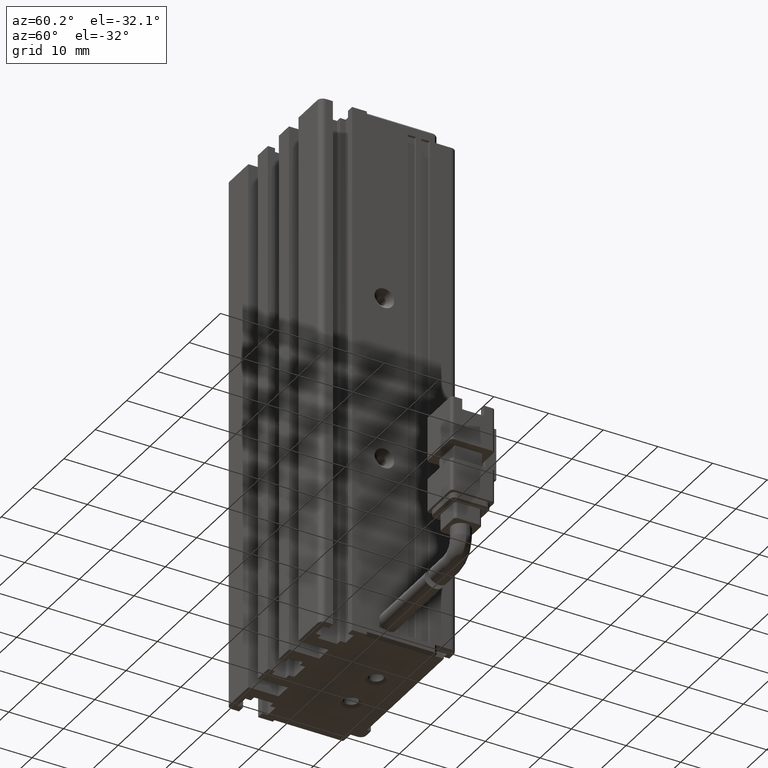
[diagram: clean part render]
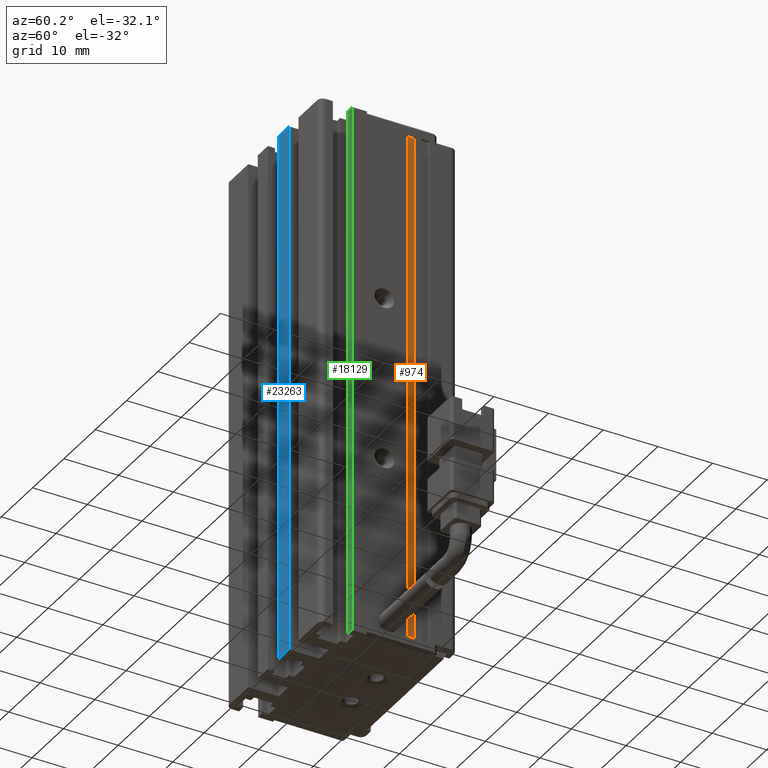
[diagram: same view with three faces highlighted in distinct colors, each labeled with its STEP entity id]
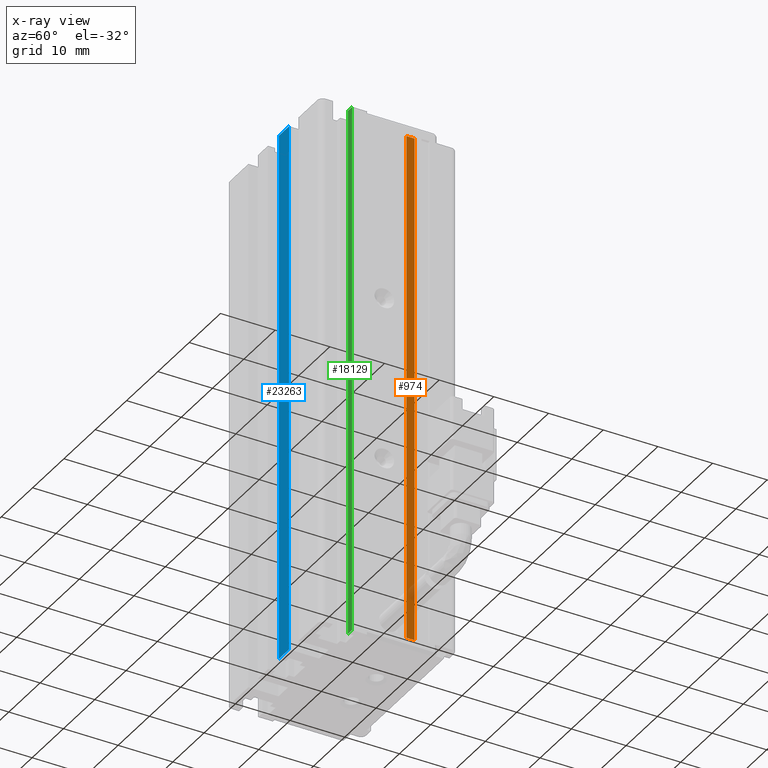
[diagram: x-ray of the same camera — body ghosted, the three highlighted faces saturated]
A machine part, auxiliary view with three faces highlighted in distinct colors.
The next image is the same camera in x-ray (body ghosted, the three faces saturated) — at least one of them is partly hidden behind the body in this view.
Their STEP definitions:

[orange] entity #974 — the highlighted planar face has unit normal (1, 0, -0).
#974 = ADVANCED_FACE ( 'NONE', ( #12801 ), #29795, .T. ) ;
#1446 = VERTEX_POINT ( 'NONE', #17252 ) ;
#2300 = DIRECTION ( 'NONE',  ( 0.0000000000000000000, 1.000000000000000000, 0.0000000000000000000 ) ) ;
#3205 = VERTEX_POINT ( 'NONE', #23604 ) ;
#3873 = CARTESIAN_POINT ( 'NONE',  ( 55.42537974683542500, 28.19594479660387200, -66.00000000000000000 ) ) ;
#6518 = VECTOR ( 'NONE', #7581, 1000.000000000000000 ) ;
#7581 = DIRECTION ( 'NONE',  ( -0.0000000000000000000, -1.000000000000000000, -0.0000000000000000000 ) ) ;
#8360 = VERTEX_POINT ( 'NONE', #26241 ) ;
#8679 = LINE ( 'NONE', #16725, #21447 ) ;
#9349 = AXIS2_PLACEMENT_3D ( 'NONE', #13027, #29890, #15446 ) ;
#9543 = EDGE_CURVE ( 'NONE', #1446, #8360, #13675, .T. ) ;
#12392 = CARTESIAN_POINT ( 'NONE',  ( 55.42537974683542500, 7.083797468354437600, -68.00000000000000000 ) ) ;
#12801 = FACE_OUTER_BOUND ( 'NONE', #18714, .T. ) ;
#13027 = CARTESIAN_POINT ( 'NONE',  ( 55.42537974683542500, 7.083797468354437600, -66.00000000000000000 ) ) ;
#13675 = LINE ( 'NONE', #12392, #6518 ) ;
#13896 = VECTOR ( 'NONE', #25533, 1000.000000000000000 ) ;
#15025 = EDGE_CURVE ( 'NONE', #3205, #8360, #16027, .T. ) ;
#15446 = DIRECTION ( 'NONE',  ( -0.0000000000000000000, 0.0000000000000000000, -1.000000000000000000 ) ) ;
#16027 = LINE ( 'NONE', #27801, #23174 ) ;
#16725 = CARTESIAN_POINT ( 'NONE',  ( 55.42537974683542500, 7.083797468354437600, -162.0000000000000000 ) ) ;
#16738 = VERTEX_POINT ( 'NONE', #30842 ) ;
#16913 = ORIENTED_EDGE ( 'NONE', *, *, #15025, .F. ) ;
#17252 = CARTESIAN_POINT ( 'NONE',  ( 55.42537974683542500, 28.19594479660387500, -68.00000000000000000 ) ) ;
#17397 = EDGE_CURVE ( 'NONE', #3205, #16738, #8679, .T. ) ;
#18154 = ORIENTED_EDGE ( 'NONE', *, *, #21468, .T. ) ;
#18714 = EDGE_LOOP ( 'NONE', ( #29037, #18154, #25373, #16913 ) ) ;
#21049 = LINE ( 'NONE', #3873, #13896 ) ;
#21447 = VECTOR ( 'NONE', #2300, 1000.000000000000000 ) ;
#21468 = EDGE_CURVE ( 'NONE', #16738, #1446, #21049, .T. ) ;
#23043 = DIRECTION ( 'NONE',  ( 0.0000000000000000000, -0.0000000000000000000, 1.000000000000000000 ) ) ;
#23174 = VECTOR ( 'NONE', #23043, 1000.000000000000000 ) ;
#23604 = CARTESIAN_POINT ( 'NONE',  ( 55.42537974683542500, 26.69594479660386800, -162.0000000000000000 ) ) ;
#25373 = ORIENTED_EDGE ( 'NONE', *, *, #9543, .T. ) ;
#25533 = DIRECTION ( 'NONE',  ( 0.0000000000000000000, -0.0000000000000000000, 1.000000000000000000 ) ) ;
#26241 = CARTESIAN_POINT ( 'NONE',  ( 55.42537974683542500, 26.69594479660386800, -68.00000000000000000 ) ) ;
#27801 = CARTESIAN_POINT ( 'NONE',  ( 55.42537974683542500, 26.69594479660386800, -66.00000000000000000 ) ) ;
#29037 = ORIENTED_EDGE ( 'NONE', *, *, #17397, .T. ) ;
#29795 = PLANE ( 'NONE',  #9349 ) ;
#29890 = DIRECTION ( 'NONE',  ( 1.000000000000000000, 0.0000000000000000000, -0.0000000000000000000 ) ) ;
#30842 = CARTESIAN_POINT ( 'NONE',  ( 55.42537974683542500, 28.19594479660387500, -162.0000000000000000 ) ) ;

[blue] entity #23263 — the highlighted planar face has unit normal (0, 1, 0).
#388 = VERTEX_POINT ( 'NONE', #23146 ) ;
#795 = LINE ( 'NONE', #14294, #25629 ) ;
#4323 = VERTEX_POINT ( 'NONE', #13964 ) ;
#5514 = VECTOR ( 'NONE', #25323, 1000.000000000000000 ) ;
#6475 = VERTEX_POINT ( 'NONE', #8999 ) ;
#6908 = DIRECTION ( 'NONE',  ( 0.0000000000000000000, 1.000000000000000000, 0.0000000000000000000 ) ) ;
#7036 = CARTESIAN_POINT ( 'NONE',  ( 45.92537974683541800, 10.69594479660386800, -164.0000000000000000 ) ) ;
#7209 = EDGE_CURVE ( 'NONE', #388, #6475, #795, .T. ) ;
#7923 = CARTESIAN_POINT ( 'NONE',  ( 40.92537974683542500, 10.69594479660386800, -164.0000000000000000 ) ) ;
#8401 = LINE ( 'NONE', #7923, #21153 ) ;
#8999 = CARTESIAN_POINT ( 'NONE',  ( 42.67537974683542500, 10.69594479660386800, -66.00000000000000000 ) ) ;
#11007 = ORIENTED_EDGE ( 'NONE', *, *, #20163, .T. ) ;
#11745 = ORIENTED_EDGE ( 'NONE', *, *, #24573, .T. ) ;
#12757 = ORIENTED_EDGE ( 'NONE', *, *, #7209, .F. ) ;
#12909 = FACE_OUTER_BOUND ( 'NONE', #24732, .T. ) ;
#13466 = VERTEX_POINT ( 'NONE', #7036 ) ;
#13964 = CARTESIAN_POINT ( 'NONE',  ( 45.92537974683541800, 10.69594479660386800, -66.00000000000000000 ) ) ;
#14215 = CARTESIAN_POINT ( 'NONE',  ( 45.92537974683541800, 10.69594479660386800, -66.00000000000000000 ) ) ;
#14294 = CARTESIAN_POINT ( 'NONE',  ( 42.67537974683542500, 10.69594479660386800, -66.00000000000000000 ) ) ;
#18770 = PLANE ( 'NONE',  #24558 ) ;
#19778 = DIRECTION ( 'NONE',  ( 1.000000000000000000, 0.0000000000000000000, 0.0000000000000000000 ) ) ;
#20163 = EDGE_CURVE ( 'NONE', #388, #13466, #8401, .T. ) ;
#21153 = VECTOR ( 'NONE', #19778, 1000.000000000000000 ) ;
#21297 = CARTESIAN_POINT ( 'NONE',  ( 40.92537974683542500, 10.69594479660386800, -66.00000000000000000 ) ) ;
#21859 = VECTOR ( 'NONE', #26347, 1000.000000000000000 ) ;
#22974 = CARTESIAN_POINT ( 'NONE',  ( 40.92537974683542500, 10.69594479660386800, -66.00000000000000000 ) ) ;
#23146 = CARTESIAN_POINT ( 'NONE',  ( 42.67537974683542500, 10.69594479660386800, -164.0000000000000000 ) ) ;
#23263 = ADVANCED_FACE ( 'NONE', ( #12909 ), #18770, .F. ) ;
#23731 = DIRECTION ( 'NONE',  ( 0.0000000000000000000, -0.0000000000000000000, 1.000000000000000000 ) ) ;
#23938 = LINE ( 'NONE', #22974, #5514 ) ;
#24558 = AXIS2_PLACEMENT_3D ( 'NONE', #21297, #6908, #23731 ) ;
#24573 = EDGE_CURVE ( 'NONE', #13466, #4323, #28278, .T. ) ;
#24732 = EDGE_LOOP ( 'NONE', ( #11745, #31047, #12757, #11007 ) ) ;
#25323 = DIRECTION ( 'NONE',  ( 1.000000000000000000, 0.0000000000000000000, 0.0000000000000000000 ) ) ;
#25629 = VECTOR ( 'NONE', #28745, 1000.000000000000000 ) ;
#25974 = EDGE_CURVE ( 'NONE', #6475, #4323, #23938, .T. ) ;
#26347 = DIRECTION ( 'NONE',  ( 0.0000000000000000000, 0.0000000000000000000, 1.000000000000000000 ) ) ;
#28278 = LINE ( 'NONE', #14215, #21859 ) ;
#28745 = DIRECTION ( 'NONE',  ( 0.0000000000000000000, -0.0000000000000000000, 1.000000000000000000 ) ) ;
#31047 = ORIENTED_EDGE ( 'NONE', *, *, #25974, .F. ) ;

[green] entity #18129 — the highlighted planar face has unit normal (-0, -1, 0).
#930 = DIRECTION ( 'NONE',  ( 0.0000000000000000000, 0.0000000000000000000, 1.000000000000000000 ) ) ;
#5555 = EDGE_CURVE ( 'NONE', #12734, #6440, #17686, .T. ) ;
#6440 = VERTEX_POINT ( 'NONE', #27845 ) ;
#7559 = CARTESIAN_POINT ( 'NONE',  ( 54.62537974683542800, 16.49594479660387900, -66.00000000000000000 ) ) ;
#7657 = CARTESIAN_POINT ( 'NONE',  ( 40.92537974683546100, 16.49594479660393300, -66.00000000000000000 ) ) ;
#7958 = DIRECTION ( 'NONE',  ( -1.000000000000000000, 4.003208021484953500E-015, -0.0000000000000000000 ) ) ;
#8648 = ORIENTED_EDGE ( 'NONE', *, *, #10170, .T. ) ;
#9036 = VERTEX_POINT ( 'NONE', #10681 ) ;
#9051 = VECTOR ( 'NONE', #14695, 1000.000000000000000 ) ;
#9708 = VECTOR ( 'NONE', #12604, 1000.000000000000000 ) ;
#10170 = EDGE_CURVE ( 'NONE', #9036, #12734, #22499, .T. ) ;
#10508 = CARTESIAN_POINT ( 'NONE',  ( 55.92537974683542500, 16.49594479660387200, -66.00000000000000000 ) ) ;
#10681 = CARTESIAN_POINT ( 'NONE',  ( 54.62537974683542800, 16.49594479660387900, -164.0000000000000000 ) ) ;
#10912 = DIRECTION ( 'NONE',  ( -4.003208021484953500E-015, -1.000000000000000000, 0.0000000000000000000 ) ) ;
#11166 = EDGE_LOOP ( 'NONE', ( #12567, #13445, #8648, #12007 ) ) ;
#12007 = ORIENTED_EDGE ( 'NONE', *, *, #5555, .T. ) ;
#12567 = ORIENTED_EDGE ( 'NONE', *, *, #17996, .T. ) ;
#12604 = DIRECTION ( 'NONE',  ( 1.000000000000000000, 0.0000000000000000000, 0.0000000000000000000 ) ) ;
#12734 = VERTEX_POINT ( 'NONE', #31005 ) ;
#13445 = ORIENTED_EDGE ( 'NONE', *, *, #21180, .T. ) ;
#14695 = DIRECTION ( 'NONE',  ( -0.0000000000000000000, -0.0000000000000000000, -1.000000000000000000 ) ) ;
#15458 = LINE ( 'NONE', #7559, #9051 ) ;
#17686 = LINE ( 'NONE', #10508, #19920 ) ;
#17996 = EDGE_CURVE ( 'NONE', #6440, #26679, #24406, .T. ) ;
#18004 = VECTOR ( 'NONE', #7958, 1000.000000000000000 ) ;
#18129 = ADVANCED_FACE ( 'NONE', ( #23228 ), #30051, .T. ) ;
#19124 = AXIS2_PLACEMENT_3D ( 'NONE', #25316, #10912, #27733 ) ;
#19920 = VECTOR ( 'NONE', #930, 1000.000000000000000 ) ;
#21180 = EDGE_CURVE ( 'NONE', #26679, #9036, #15458, .T. ) ;
#22499 = LINE ( 'NONE', #27025, #9708 ) ;
#23228 = FACE_OUTER_BOUND ( 'NONE', #11166, .T. ) ;
#24406 = LINE ( 'NONE', #7657, #18004 ) ;
#25036 = CARTESIAN_POINT ( 'NONE',  ( 54.62537974683542800, 16.49594479660387900, -66.00000000000000000 ) ) ;
#25316 = CARTESIAN_POINT ( 'NONE',  ( 40.92537974683546100, 16.49594479660393300, -66.00000000000000000 ) ) ;
#26679 = VERTEX_POINT ( 'NONE', #25036 ) ;
#27025 = CARTESIAN_POINT ( 'NONE',  ( 40.92537974683542500, 16.49594479660387900, -164.0000000000000000 ) ) ;
#27733 = DIRECTION ( 'NONE',  ( 1.000000000000000000, -4.003208021484953500E-015, 0.0000000000000000000 ) ) ;
#27845 = CARTESIAN_POINT ( 'NONE',  ( 55.92537974683542500, 16.49594479660387200, -66.00000000000000000 ) ) ;
#30051 = PLANE ( 'NONE',  #19124 ) ;
#31005 = CARTESIAN_POINT ( 'NONE',  ( 55.92537974683542500, 16.49594479660387200, -164.0000000000000000 ) ) ;